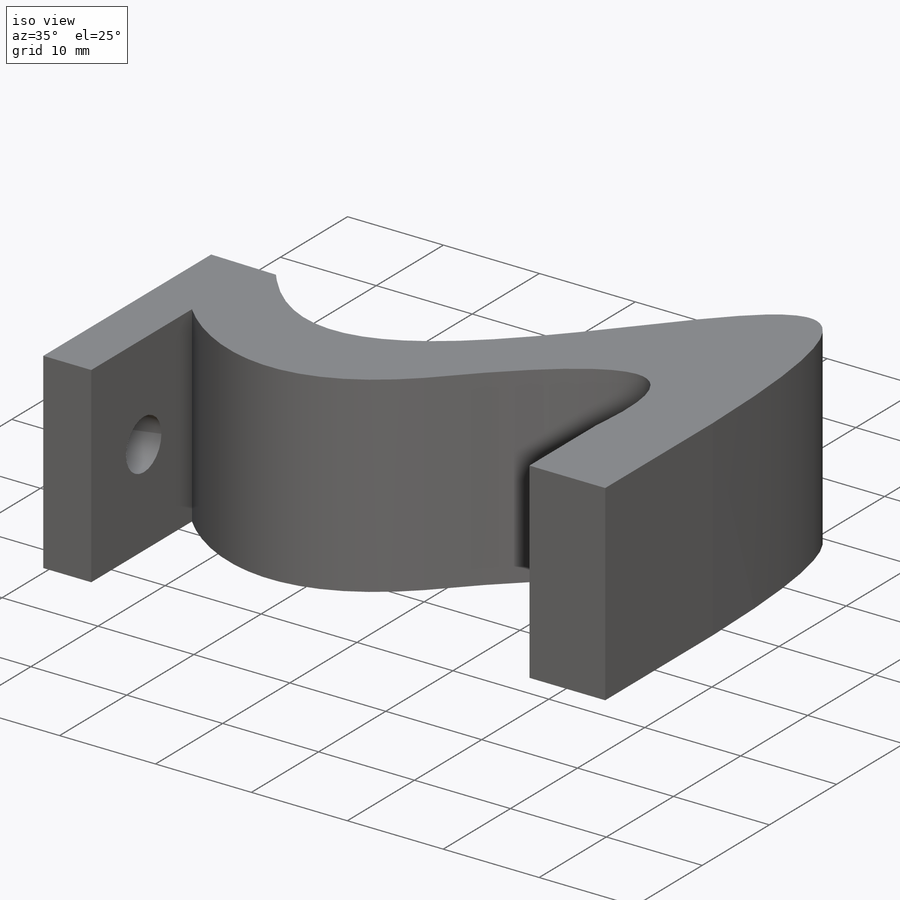
[diagram: iso view]
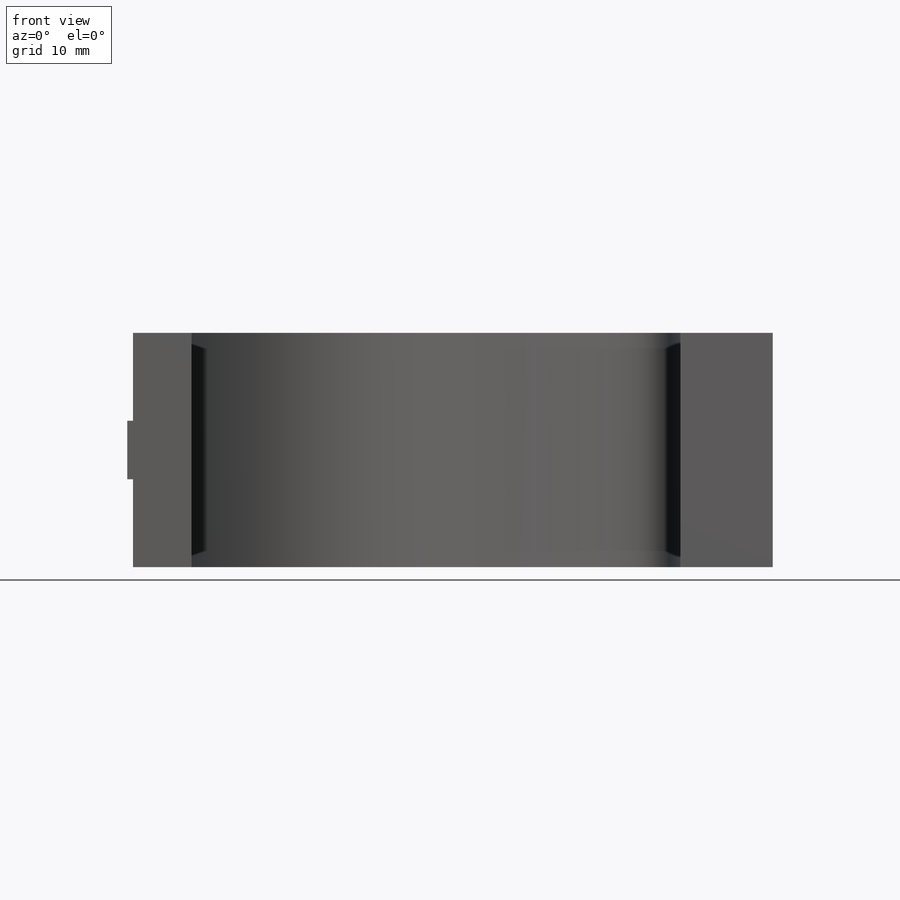
[diagram: front view]
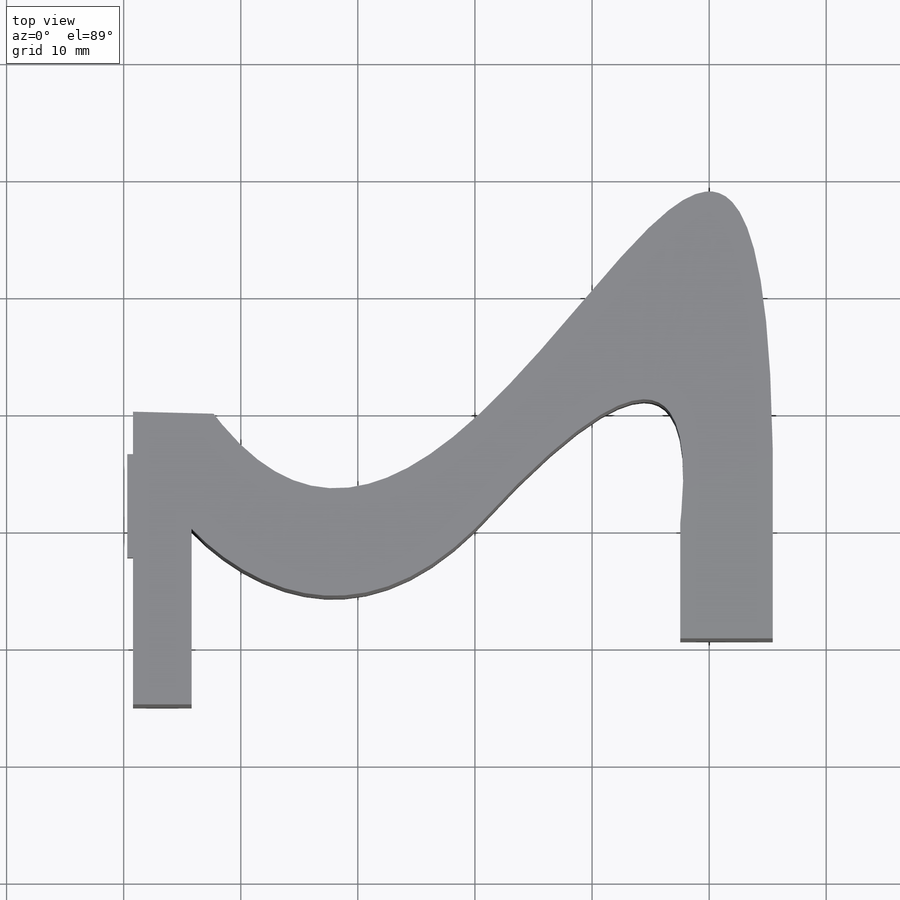
[diagram: top view]
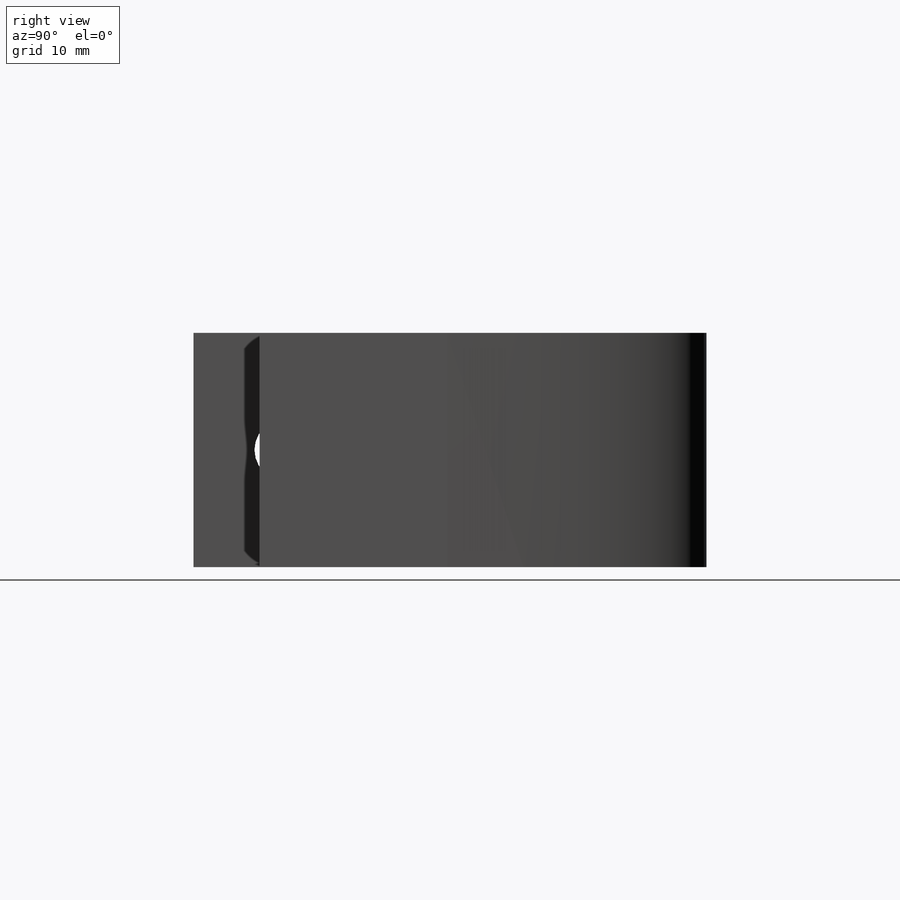
[diagram: right view]
SOLIDWORKS PART (.sldprt)
format: sldprt  version: not decoded by parser v0  size: 167,936 bytes
history: native  units: mm
features: sketch x3, extrude x2, material x1, cut_extrude x1 (+13 scaffold rows collapsed)
feature tree (20):
  scaffold x13  (default folders/planes/origin — collapsed)
  material  "Material <not specified>"
  sketch  "Sketch1"  dims[c1.D1=27.5mm c1.D2=27.5mm c1.D3=27.5mm c1.D4=~55.982504mm c2.D3=10.0mm c2.D4=5.0mm c2.D5=10.0mm c2.D6=12.5mm c2.D7=5.0mm c2.D2=25.0mm]
  extrude  "Boss-Extrude3"  Depth=20mm
  sketch  "Sketch3"  dims[D1=5.25mm]
  cut_extrude  "Cut-Extrude1"  [1 undecoded]
  sketch  "Sketch4"  dims[D1=5.0mm D2=5.0mm]
  extrude  "Boss-Extrude4"  Depth=0.5mm
decode coverage: 5 of 6 modeling features carry decoded parameters
note: ~ marks probable driven/reference dimensions
note: 1 parameter value undecoded
note: suppression state not decoded; provenance and decode notes live in map.json
